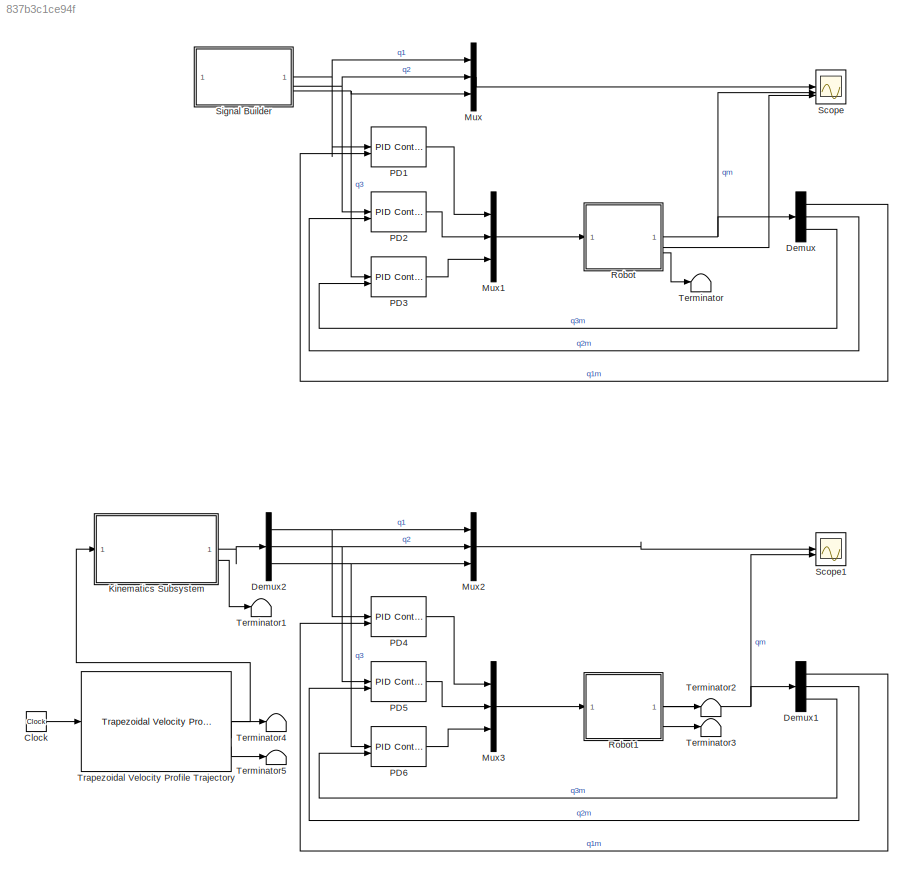
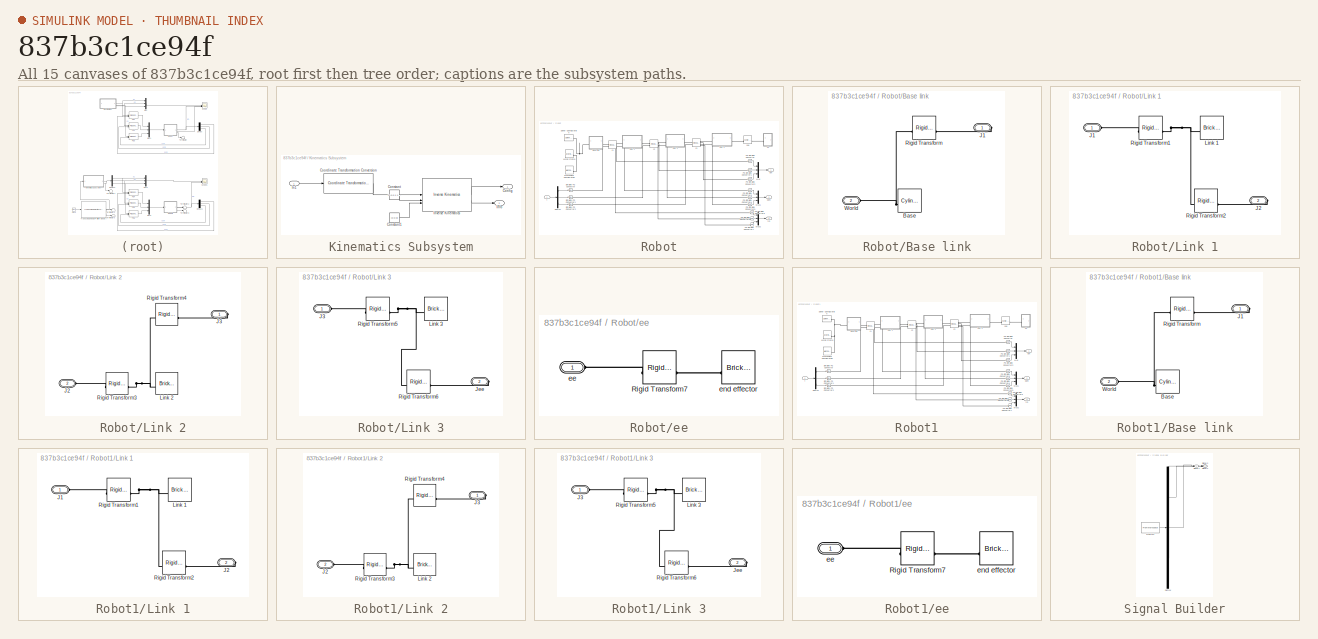
[diagram: thumbnail index - all 15 canvases of the model, root first then tree order]
MODEL slx_837b3c1ce94f
KIND model
CONFIG AbsTol = auto
CONFIG EnableMultiTasking = off
CONFIG FixedStep = auto
CONFIG MaxStep = auto
CONFIG MinStep = auto
CONFIG RelTol = 1e-3
CONFIG SampleTimeConstraint = Unconstrained
CONFIG SolverName = VariableStepAuto
CONFIG StartTime = 0.0
CONFIG StopTime = 4
BLOCK [Clock] Clock
BLOCK [Demux] Demux
  Commented = on
  Outputs = 3
BLOCK [Demux] Demux1
  Outputs = 3
BLOCK [Demux] Demux2
  Outputs = 3
BLOCK [SubSystem] Kinematics Subsystem
BLOCK [Outport] Kinematics Subsystem/Config
BLOCK [Constant] Kinematics Subsystem/Constant
  Value = [0 0 0 1 1 1]
BLOCK [Constant] Kinematics Subsystem/Constant1
  Value = [0 0 0]
BLOCK [Reference] Kinematics Subsystem/Coordinate Transformation Conversion  REF=robotcorelib/Coordinate Transformation Conversion
  LibrarySourceBlock = navlib/Utilities/Coordinate Transformation Conversion
  SourceBlock = robotcorelib/Coordinate Transformation Conversion
  SourceType = robotics.slcore.internal.block.CoordinateTransformationConversion
BLOCK [Inport] Kinematics Subsystem/In1
BLOCK [Outport] Kinematics Subsystem/Info
  Port = 2
BLOCK [Reference] Kinematics Subsystem/Inverse Kinematics  REF=robotmaniplib/Inverse Kinematics
  SourceBlock = robotmaniplib/Inverse Kinematics
  SourceType = Inverse Kinematics
BLOCK [Mux] Mux
  Commented = on
  DisplayOption = bar
  Inputs = 3
BLOCK [Mux] Mux1
  Commented = on
  DisplayOption = bar
  Inputs = 3
BLOCK [Mux] Mux2
  DisplayOption = bar
  Inputs = 3
BLOCK [Mux] Mux3
  DisplayOption = bar
  Inputs = 3
BLOCK [Reference] PD1  REF=slpidlib/PID Controller (2DOF)
  Commented = on
  SourceBlock = slpidlib/PID Controller (2DOF)
  SourceType = PID 2dof
BLOCK [Reference] PD2  REF=slpidlib/PID Controller (2DOF)
  Commented = on
  SourceBlock = slpidlib/PID Controller (2DOF)
  SourceType = PID 2dof
BLOCK [Reference] PD3  REF=slpidlib/PID Controller (2DOF)
  Commented = on
  SourceBlock = slpidlib/PID Controller (2DOF)
  SourceType = PID 2dof
BLOCK [Reference] PD4  REF=slpidlib/PID Controller (2DOF)
  SourceBlock = slpidlib/PID Controller (2DOF)
  SourceType = PID 2dof
BLOCK [Reference] PD5  REF=slpidlib/PID Controller (2DOF)
  SourceBlock = slpidlib/PID Controller (2DOF)
  SourceType = PID 2dof
BLOCK [Reference] PD6  REF=slpidlib/PID Controller (2DOF)
  SourceBlock = slpidlib/PID Controller (2DOF)
  SourceType = PID 2dof
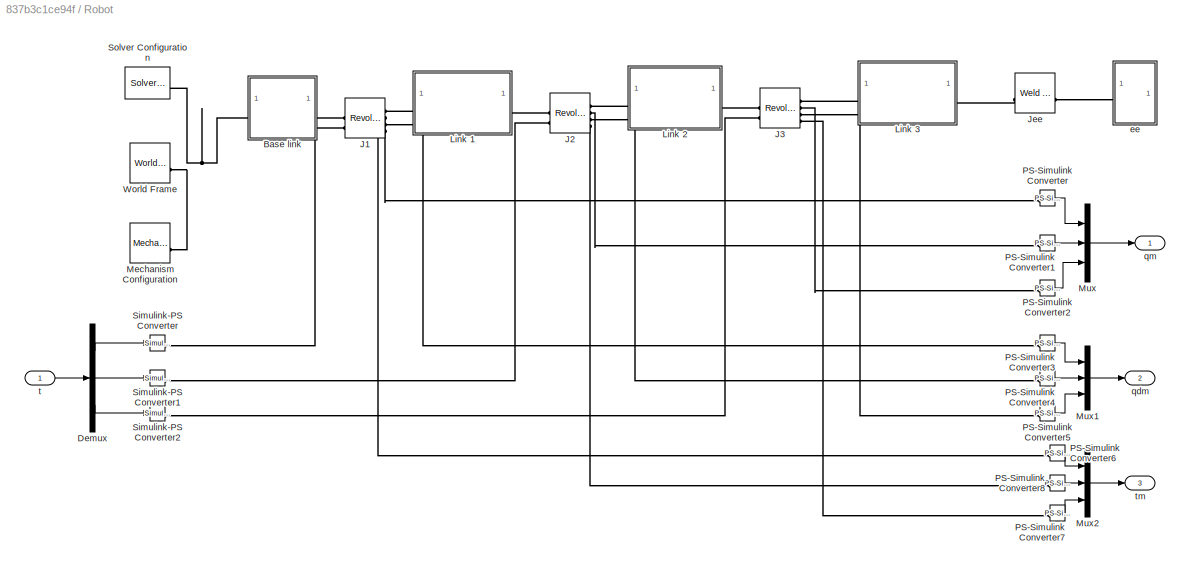
BLOCK [SubSystem] Robot
  Commented = on
BLOCK [SubSystem] Robot/Base link
BLOCK [Reference] Robot/Base link/Base  REF=sm_lib/Body Elements/Cylindrical Solid
  NameLocation = top
  SourceBlock = sm_lib/Body Elements/Cylindrical Solid
  SourceType = Cylindrical Solid
BLOCK [PMIOPort] Robot/Base link/J1
  Side = Right
BLOCK [Reference] Robot/Base link/Rigid Transform  REF=sm_lib/Frames and
Transforms/Rigid
Transform
  SourceBlock = sm_lib/Frames and\nTransforms/Rigid\nTransform
  SourceType = Rigid\nTransform
BLOCK [PMIOPort] Robot/Base link/World
  Port = 2
  Side = Left
BLOCK [Demux] Robot/Demux
  Outputs = 3
BLOCK [Reference] Robot/J1  REF=sm_lib/Joints/Revolute Joint
  SourceBlock = sm_lib/Joints/Revolute Joint
  SourceType = Revolute Joint
BLOCK [Reference] Robot/J2  REF=sm_lib/Joints/Revolute Joint
  SourceBlock = sm_lib/Joints/Revolute Joint
  SourceType = Revolute Joint
BLOCK [Reference] Robot/J3  REF=sm_lib/Joints/Revolute Joint
  SourceBlock = sm_lib/Joints/Revolute Joint
  SourceType = Revolute Joint
BLOCK [Reference] Robot/Jee  REF=sm_lib/Joints/Weld Joint
  SourceBlock = sm_lib/Joints/Weld Joint
  SourceType = Weld Joint
BLOCK [SubSystem] Robot/Link 1
BLOCK [PMIOPort] Robot/Link 1/J1
  Side = Left
BLOCK [PMIOPort] Robot/Link 1/J2
  Port = 2
  Side = Right
BLOCK [Reference] Robot/Link 1/Link 1  REF=sm_lib/Body Elements/Brick Solid
  NameLocation = top
  SourceBlock = sm_lib/Body Elements/Brick Solid
  SourceType = Brick Solid
BLOCK [Reference] Robot/Link 1/Rigid Transform1  REF=sm_lib/Frames and
Transforms/Rigid
Transform
  SourceBlock = sm_lib/Frames and\nTransforms/Rigid\nTransform
  SourceType = Rigid\nTransform
BLOCK [Reference] Robot/Link 1/Rigid Transform2  REF=sm_lib/Frames and
Transforms/Rigid
Transform
  SourceBlock = sm_lib/Frames and\nTransforms/Rigid\nTransform
  SourceType = Rigid\nTransform
BLOCK [SubSystem] Robot/Link 2
BLOCK [PMIOPort] Robot/Link 2/J2
  Port = 2
  Side = Left
BLOCK [PMIOPort] Robot/Link 2/J3
  Side = Right
BLOCK [Reference] Robot/Link 2/Link 2  REF=sm_lib/Body Elements/Brick Solid
  NameLocation = top
  SourceBlock = sm_lib/Body Elements/Brick Solid
  SourceType = Brick Solid
BLOCK [Reference] Robot/Link 2/Rigid Transform3  REF=sm_lib/Frames and
Transforms/Rigid
Transform
  SourceBlock = sm_lib/Frames and\nTransforms/Rigid\nTransform
  SourceType = Rigid\nTransform
BLOCK [Reference] Robot/Link 2/Rigid Transform4  REF=sm_lib/Frames and
Transforms/Rigid
Transform
  SourceBlock = sm_lib/Frames and\nTransforms/Rigid\nTransform
  SourceType = Rigid\nTransform
BLOCK [SubSystem] Robot/Link 3
BLOCK [PMIOPort] Robot/Link 3/J3
  Side = Left
BLOCK [PMIOPort] Robot/Link 3/Jee
  Port = 2
  Side = Right
BLOCK [Reference] Robot/Link 3/Link 3  REF=sm_lib/Body Elements/Brick Solid
  NameLocation = top
  SourceBlock = sm_lib/Body Elements/Brick Solid
  SourceType = Brick Solid
BLOCK [Reference] Robot/Link 3/Rigid Transform5  REF=sm_lib/Frames and
Transforms/Rigid
Transform
  SourceBlock = sm_lib/Frames and\nTransforms/Rigid\nTransform
  SourceType = Rigid\nTransform
BLOCK [Reference] Robot/Link 3/Rigid Transform6  REF=sm_lib/Frames and
Transforms/Rigid
Transform
  SourceBlock = sm_lib/Frames and\nTransforms/Rigid\nTransform
  SourceType = Rigid\nTransform
BLOCK [Reference] Robot/Mechanism Configuration  REF=sm_lib/Utilities/Mechanism
Configuration
  SourceBlock = sm_lib/Utilities/Mechanism\nConfiguration
  SourceType = Mechanism\nConfiguration
BLOCK [Mux] Robot/Mux
  DisplayOption = bar
  Inputs = 3
BLOCK [Mux] Robot/Mux1
  DisplayOption = bar
  Inputs = 3
BLOCK [Mux] Robot/Mux2
  DisplayOption = bar
  Inputs = 3
BLOCK [Reference] Robot/PS-Simulink Converter  REF=nesl_utility/PS-Simulink
Converter
  SourceBlock = nesl_utility/PS-Simulink\nConverter
  SourceType = PS-Simulink\nConverter
BLOCK [Reference] Robot/PS-Simulink Converter1  REF=nesl_utility/PS-Simulink
Converter
  SourceBlock = nesl_utility/PS-Simulink\nConverter
  SourceType = PS-Simulink\nConverter
BLOCK [Reference] Robot/PS-Simulink Converter2  REF=nesl_utility/PS-Simulink
Converter
  SourceBlock = nesl_utility/PS-Simulink\nConverter
  SourceType = PS-Simulink\nConverter
BLOCK [Reference] Robot/PS-Simulink Converter3  REF=nesl_utility/PS-Simulink
Converter
  SourceBlock = nesl_utility/PS-Simulink\nConverter
  SourceType = PS-Simulink\nConverter
BLOCK [Reference] Robot/PS-Simulink Converter4  REF=nesl_utility/PS-Simulink
Converter
  SourceBlock = nesl_utility/PS-Simulink\nConverter
  SourceType = PS-Simulink\nConverter
BLOCK [Reference] Robot/PS-Simulink Converter5  REF=nesl_utility/PS-Simulink
Converter
  SourceBlock = nesl_utility/PS-Simulink\nConverter
  SourceType = PS-Simulink\nConverter
BLOCK [Reference] Robot/PS-Simulink Converter6  REF=nesl_utility/PS-Simulink
Converter
  SourceBlock = nesl_utility/PS-Simulink\nConverter
  SourceType = PS-Simulink\nConverter
BLOCK [Reference] Robot/PS-Simulink Converter7  REF=nesl_utility/PS-Simulink
Converter
  SourceBlock = nesl_utility/PS-Simulink\nConverter
  SourceType = PS-Simulink\nConverter
BLOCK [Reference] Robot/PS-Simulink Converter8  REF=nesl_utility/PS-Simulink
Converter
  SourceBlock = nesl_utility/PS-Simulink\nConverter
  SourceType = PS-Simulink\nConverter
BLOCK [Reference] Robot/Simulink-PS Converter  REF=nesl_utility/Simulink-PS
Converter
  SourceBlock = nesl_utility/Simulink-PS\nConverter
  SourceType = Simulink-PS\nConverter
BLOCK [Reference] Robot/Simulink-PS Converter1  REF=nesl_utility/Simulink-PS
Converter
  SourceBlock = nesl_utility/Simulink-PS\nConverter
  SourceType = Simulink-PS\nConverter
BLOCK [Reference] Robot/Simulink-PS Converter2  REF=nesl_utility/Simulink-PS
Converter
  SourceBlock = nesl_utility/Simulink-PS\nConverter
  SourceType = Simulink-PS\nConverter
BLOCK [Reference] Robot/Solver Configuration  REF=nesl_utility/Solver
Configuration
  SourceBlock = nesl_utility/Solver\nConfiguration
  SourceType = Solver\nConfiguration
BLOCK [Reference] Robot/World Frame  REF=sm_lib/Frames and
Transforms/World Frame
  SourceBlock = sm_lib/Frames and\nTransforms/World Frame
  SourceType = World Frame
BLOCK [SubSystem] Robot/ee
BLOCK [Reference] Robot/ee/Rigid Transform7  REF=sm_lib/Frames and
Transforms/Rigid
Transform
  SourceBlock = sm_lib/Frames and\nTransforms/Rigid\nTransform
  SourceType = Rigid\nTransform
BLOCK [PMIOPort] Robot/ee/ee
  Side = Left
BLOCK [Reference] Robot/ee/end effector  REF=sm_lib/Body Elements/Brick Solid
  NameLocation = top
  SourceBlock = sm_lib/Body Elements/Brick Solid
  SourceType = Brick Solid
BLOCK [Outport] Robot/qdm
  Port = 2
BLOCK [Outport] Robot/qm
BLOCK [Inport] Robot/t
BLOCK [Outport] Robot/tm
  Port = 3
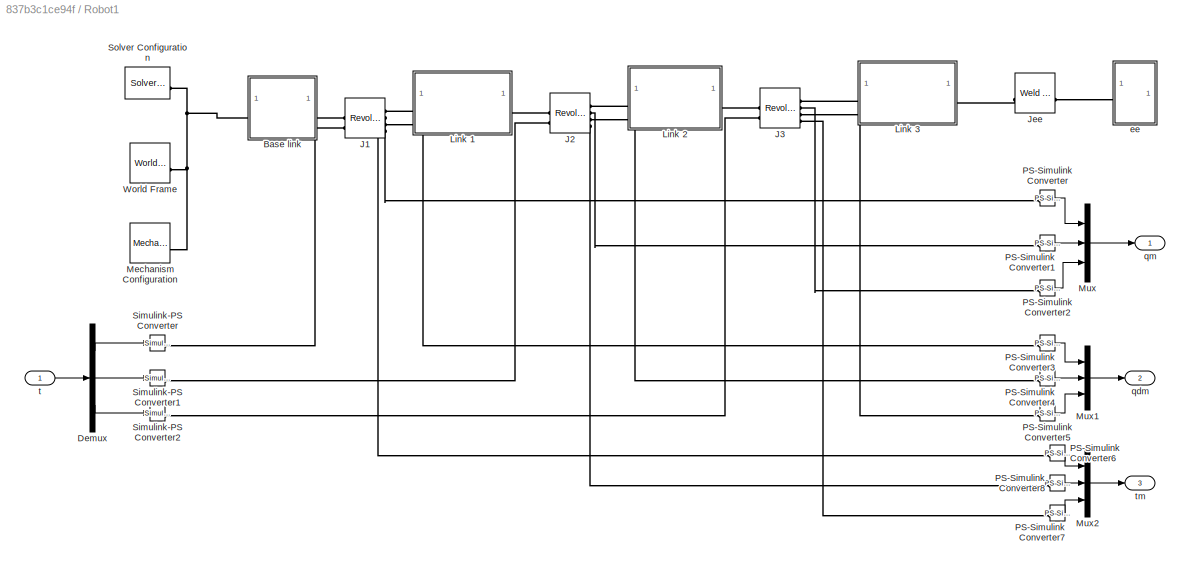
BLOCK [SubSystem] Robot1
BLOCK [SubSystem] Robot1/Base link
BLOCK [Reference] Robot1/Base link/Base  REF=sm_lib/Body Elements/Cylindrical Solid
  NameLocation = top
  SourceBlock = sm_lib/Body Elements/Cylindrical Solid
  SourceType = Cylindrical Solid
BLOCK [PMIOPort] Robot1/Base link/J1
  Side = Right
BLOCK [Reference] Robot1/Base link/Rigid Transform  REF=sm_lib/Frames and
Transforms/Rigid
Transform
  SourceBlock = sm_lib/Frames and\nTransforms/Rigid\nTransform
  SourceType = Rigid\nTransform
BLOCK [PMIOPort] Robot1/Base link/World
  Port = 2
  Side = Left
BLOCK [Demux] Robot1/Demux
  Outputs = 3
BLOCK [Reference] Robot1/J1  REF=sm_lib/Joints/Revolute Joint
  SourceBlock = sm_lib/Joints/Revolute Joint
  SourceType = Revolute Joint
BLOCK [Reference] Robot1/J2  REF=sm_lib/Joints/Revolute Joint
  SourceBlock = sm_lib/Joints/Revolute Joint
  SourceType = Revolute Joint
BLOCK [Reference] Robot1/J3  REF=sm_lib/Joints/Revolute Joint
  SourceBlock = sm_lib/Joints/Revolute Joint
  SourceType = Revolute Joint
BLOCK [Reference] Robot1/Jee  REF=sm_lib/Joints/Weld Joint
  SourceBlock = sm_lib/Joints/Weld Joint
  SourceType = Weld Joint
BLOCK [SubSystem] Robot1/Link 1
BLOCK [PMIOPort] Robot1/Link 1/J1
  Side = Left
BLOCK [PMIOPort] Robot1/Link 1/J2
  Port = 2
  Side = Right
BLOCK [Reference] Robot1/Link 1/Link 1  REF=sm_lib/Body Elements/Brick Solid
  NameLocation = top
  SourceBlock = sm_lib/Body Elements/Brick Solid
  SourceType = Brick Solid
BLOCK [Reference] Robot1/Link 1/Rigid Transform1  REF=sm_lib/Frames and
Transforms/Rigid
Transform
  SourceBlock = sm_lib/Frames and\nTransforms/Rigid\nTransform
  SourceType = Rigid\nTransform
BLOCK [Reference] Robot1/Link 1/Rigid Transform2  REF=sm_lib/Frames and
Transforms/Rigid
Transform
  SourceBlock = sm_lib/Frames and\nTransforms/Rigid\nTransform
  SourceType = Rigid\nTransform
BLOCK [SubSystem] Robot1/Link 2
BLOCK [PMIOPort] Robot1/Link 2/J2
  Port = 2
  Side = Left
BLOCK [PMIOPort] Robot1/Link 2/J3
  Side = Right
BLOCK [Reference] Robot1/Link 2/Link 2  REF=sm_lib/Body Elements/Brick Solid
  NameLocation = top
  SourceBlock = sm_lib/Body Elements/Brick Solid
  SourceType = Brick Solid
BLOCK [Reference] Robot1/Link 2/Rigid Transform3  REF=sm_lib/Frames and
Transforms/Rigid
Transform
  SourceBlock = sm_lib/Frames and\nTransforms/Rigid\nTransform
  SourceType = Rigid\nTransform
BLOCK [Reference] Robot1/Link 2/Rigid Transform4  REF=sm_lib/Frames and
Transforms/Rigid
Transform
  SourceBlock = sm_lib/Frames and\nTransforms/Rigid\nTransform
  SourceType = Rigid\nTransform
BLOCK [SubSystem] Robot1/Link 3
BLOCK [PMIOPort] Robot1/Link 3/J3
  Side = Left
BLOCK [PMIOPort] Robot1/Link 3/Jee
  Port = 2
  Side = Right
BLOCK [Reference] Robot1/Link 3/Link 3  REF=sm_lib/Body Elements/Brick Solid
  NameLocation = top
  SourceBlock = sm_lib/Body Elements/Brick Solid
  SourceType = Brick Solid
BLOCK [Reference] Robot1/Link 3/Rigid Transform5  REF=sm_lib/Frames and
Transforms/Rigid
Transform
  SourceBlock = sm_lib/Frames and\nTransforms/Rigid\nTransform
  SourceType = Rigid\nTransform
BLOCK [Reference] Robot1/Link 3/Rigid Transform6  REF=sm_lib/Frames and
Transforms/Rigid
Transform
  SourceBlock = sm_lib/Frames and\nTransforms/Rigid\nTransform
  SourceType = Rigid\nTransform
BLOCK [Reference] Robot1/Mechanism Configuration  REF=sm_lib/Utilities/Mechanism
Configuration
  SourceBlock = sm_lib/Utilities/Mechanism\nConfiguration
  SourceType = Mechanism\nConfiguration
BLOCK [Mux] Robot1/Mux
  DisplayOption = bar
  Inputs = 3
BLOCK [Mux] Robot1/Mux1
  DisplayOption = bar
  Inputs = 3
BLOCK [Mux] Robot1/Mux2
  DisplayOption = bar
  Inputs = 3
BLOCK [Reference] Robot1/PS-Simulink Converter  REF=nesl_utility/PS-Simulink
Converter
  SourceBlock = nesl_utility/PS-Simulink\nConverter
  SourceType = PS-Simulink\nConverter
BLOCK [Reference] Robot1/PS-Simulink Converter1  REF=nesl_utility/PS-Simulink
Converter
  SourceBlock = nesl_utility/PS-Simulink\nConverter
  SourceType = PS-Simulink\nConverter
BLOCK [Reference] Robot1/PS-Simulink Converter2  REF=nesl_utility/PS-Simulink
Converter
  SourceBlock = nesl_utility/PS-Simulink\nConverter
  SourceType = PS-Simulink\nConverter
BLOCK [Reference] Robot1/PS-Simulink Converter3  REF=nesl_utility/PS-Simulink
Converter
  SourceBlock = nesl_utility/PS-Simulink\nConverter
  SourceType = PS-Simulink\nConverter
BLOCK [Reference] Robot1/PS-Simulink Converter4  REF=nesl_utility/PS-Simulink
Converter
  SourceBlock = nesl_utility/PS-Simulink\nConverter
  SourceType = PS-Simulink\nConverter
BLOCK [Reference] Robot1/PS-Simulink Converter5  REF=nesl_utility/PS-Simulink
Converter
  SourceBlock = nesl_utility/PS-Simulink\nConverter
  SourceType = PS-Simulink\nConverter
BLOCK [Reference] Robot1/PS-Simulink Converter6  REF=nesl_utility/PS-Simulink
Converter
  SourceBlock = nesl_utility/PS-Simulink\nConverter
  SourceType = PS-Simulink\nConverter
BLOCK [Reference] Robot1/PS-Simulink Converter7  REF=nesl_utility/PS-Simulink
Converter
  SourceBlock = nesl_utility/PS-Simulink\nConverter
  SourceType = PS-Simulink\nConverter
BLOCK [Reference] Robot1/PS-Simulink Converter8  REF=nesl_utility/PS-Simulink
Converter
  SourceBlock = nesl_utility/PS-Simulink\nConverter
  SourceType = PS-Simulink\nConverter
BLOCK [Reference] Robot1/Simulink-PS Converter  REF=nesl_utility/Simulink-PS
Converter
  SourceBlock = nesl_utility/Simulink-PS\nConverter
  SourceType = Simulink-PS\nConverter
BLOCK [Reference] Robot1/Simulink-PS Converter1  REF=nesl_utility/Simulink-PS
Converter
  SourceBlock = nesl_utility/Simulink-PS\nConverter
  SourceType = Simulink-PS\nConverter
BLOCK [Reference] Robot1/Simulink-PS Converter2  REF=nesl_utility/Simulink-PS
Converter
  SourceBlock = nesl_utility/Simulink-PS\nConverter
  SourceType = Simulink-PS\nConverter
BLOCK [Reference] Robot1/Solver Configuration  REF=nesl_utility/Solver
Configuration
  SourceBlock = nesl_utility/Solver\nConfiguration
  SourceType = Solver\nConfiguration
BLOCK [Reference] Robot1/World Frame  REF=sm_lib/Frames and
Transforms/World Frame
  SourceBlock = sm_lib/Frames and\nTransforms/World Frame
  SourceType = World Frame
BLOCK [SubSystem] Robot1/ee
BLOCK [Reference] Robot1/ee/Rigid Transform7  REF=sm_lib/Frames and
Transforms/Rigid
Transform
  SourceBlock = sm_lib/Frames and\nTransforms/Rigid\nTransform
  SourceType = Rigid\nTransform
BLOCK [PMIOPort] Robot1/ee/ee
  Side = Left
BLOCK [Reference] Robot1/ee/end effector  REF=sm_lib/Body Elements/Brick Solid
  NameLocation = top
  SourceBlock = sm_lib/Body Elements/Brick Solid
  SourceType = Brick Solid
BLOCK [Outport] Robot1/qdm
  Port = 2
BLOCK [Outport] Robot1/qm
BLOCK [Inport] Robot1/t
BLOCK [Outport] Robot1/tm
  Port = 3
BLOCK [Scope] Scope
  Commented = on
  Floating = off
  NumInputPorts = 3
  ScopeSpecificationString = Simulink.scopes.TimeScopeBlockCfg('CurrentConfiguration', extmgr.ConfigurationSet(extmgr.Configuration('Core','General UI',true,'DisplayFullSourceName',true),extmgr.Configuration('Core','Source UI',true),extmgr.Configuration('Sources','WiredSimulink',true),extmgr.Configuration('Visuals','Time Domain',true,'SerializedDisplays',{struct('MinYLimReal','-0.0375','MaxYLimReal','0.3375','YLabelReal','','...<+2749ch>
BLOCK [Scope] Scope1
  Floating = off
  NumInputPorts = 2
  ScopeSpecificationString = Simulink.scopes.TimeScopeBlockCfg('CurrentConfiguration', extmgr.ConfigurationSet(extmgr.Configuration('Core','General UI',true),extmgr.Configuration('Core','Source UI',true),extmgr.Configuration('Sources','WiredSimulink',true,'DataLoggingVariableName','ScopeData1'),extmgr.Configuration('Visuals','Time Domain',true,'SerializedDisplays',{struct('MinYLimReal','-0.0244','MaxYLimReal','0.12165','YLabe...<+2028ch>
BLOCK [SubSystem] Signal Builder
  ClipboardFcn = sigbuilder_block('clipboard');
  CloseFcn = sigbuilder_block('close');
  Commented = on
  ContinueFcn = sigbuilder_block('continue');
  CopyFcn = sigbuilder_block('copy');
  DeleteFcn = sigbuilder_block('delete');
  LoadFcn = sigbuilder_block('load');
  MaskHideContents = on
  ModelCloseFcn = sigbuilder_block('modelClose');
  NameChangeFcn = sigbuilder_block('namechange');
  OpenFcn = sigbuilder_block('open',[280.2 117 550.8 400.2 ]);
  PauseFcn = sigbuilder_block('pause');
  PreSaveFcn = sigbuilder_block('preSave');
  StartFcn = sigbuilder_block('start');
  StopFcn = sigbuilder_block('stop');
  Tag = STV Subsys
BLOCK [Demux] Signal Builder/Demux
  DisplayOption = none
  Outputs = 3
  Tag = STV Demux
BLOCK [FromWorkspace] Signal Builder/FromWs
  Tag = STV FromWs
  VariableName = tuvar
BLOCK [Outport] Signal Builder/Signal 1
  Tag = STV Outport
BLOCK [Outport] Signal Builder/Signal 2
  Port = 2
  Tag = STV Outport
BLOCK [Outport] Signal Builder/Signal 3
  Port = 3
  Tag = STV Outport
BLOCK [Terminator] Terminator
  Commented = on
BLOCK [Terminator] Terminator1
BLOCK [Terminator] Terminator2
BLOCK [Terminator] Terminator3
BLOCK [Terminator] Terminator4
BLOCK [Terminator] Terminator5
BLOCK [Reference] Trapezoidal Velocity Profile Trajectory  REF=robotcorelib/Trapezoidal Velocity Profile Trajectory
  SourceBlock = robotcorelib/Trapezoidal Velocity Profile Trajectory
  SourceType = robotics.slcore.internal.block.TrapVelTrajSys
LINE Clock:1 -> Trapezoidal Velocity Profile Trajectory:1
LINE Demux1:1 -> PD4:2
LINE Demux1:2 -> PD5:2
LINE Demux1:3 -> PD6:2
NET Demux2:1 -> Mux2:1, PD4:1
NET Demux2:2 -> Mux2:2, PD5:1
NET Demux2:3 -> Mux2:3, PD6:1
LINE Demux:1 -> PD1:2
LINE Demux:2 -> PD2:2
LINE Demux:3 -> PD3:2
LINE Kinematics Subsystem/Constant1:1 -> Kinematics Subsystem/Inverse Kinematics:3
LINE Kinematics Subsystem/Constant:1 -> Kinematics Subsystem/Inverse Kinematics:2
LINE Kinematics Subsystem/Coordinate Transformation Conversion:1 -> Kinematics Subsystem/Inverse Kinematics:1
LINE Kinematics Subsystem/In1:1 -> Kinematics Subsystem/Coordinate Transformation Conversion:1
LINE Kinematics Subsystem/Inverse Kinematics:1 -> Kinematics Subsystem/Config:1
LINE Kinematics Subsystem/Inverse Kinematics:2 -> Kinematics Subsystem/Info:1
LINE Kinematics Subsystem:1 -> Demux2:1
LINE Kinematics Subsystem:2 -> Terminator1:1
LINE Mux1:1 -> Robot:1
LINE Mux2:1 -> Scope1:1
LINE Mux3:1 -> Robot1:1
LINE Mux:1 -> Scope:1
LINE PD1:1 -> Mux1:1
LINE PD2:1 -> Mux1:2
LINE PD3:1 -> Mux1:3
LINE PD4:1 -> Mux3:1
LINE PD5:1 -> Mux3:2
LINE PD6:1 -> Mux3:3
LINE Robot/Demux:1 -> Robot/Simulink-PS Converter:1
LINE Robot/Demux:2 -> Robot/Simulink-PS Converter1:1
LINE Robot/Demux:3 -> Robot/Simulink-PS Converter2:1
LINE Robot/Mux1:1 -> Robot/qdm:1
LINE Robot/Mux2:1 -> Robot/tm:1
LINE Robot/Mux:1 -> Robot/qm:1
LINE Robot/PS-Simulink Converter1:1 -> Robot/Mux:2
LINE Robot/PS-Simulink Converter2:1 -> Robot/Mux:3
LINE Robot/PS-Simulink Converter3:1 -> Robot/Mux1:1
LINE Robot/PS-Simulink Converter4:1 -> Robot/Mux1:2
LINE Robot/PS-Simulink Converter5:1 -> Robot/Mux1:3
LINE Robot/PS-Simulink Converter6:1 -> Robot/Mux2:1
LINE Robot/PS-Simulink Converter7:1 -> Robot/Mux2:3
LINE Robot/PS-Simulink Converter8:1 -> Robot/Mux2:2
LINE Robot/PS-Simulink Converter:1 -> Robot/Mux:1
LINE Robot/t:1 -> Robot/Demux:1
LINE Robot1/Demux:1 -> Robot1/Simulink-PS Converter:1
LINE Robot1/Demux:2 -> Robot1/Simulink-PS Converter1:1
LINE Robot1/Demux:3 -> Robot1/Simulink-PS Converter2:1
LINE Robot1/Mux1:1 -> Robot1/qdm:1
LINE Robot1/Mux2:1 -> Robot1/tm:1
LINE Robot1/Mux:1 -> Robot1/qm:1
LINE Robot1/PS-Simulink Converter1:1 -> Robot1/Mux:2
LINE Robot1/PS-Simulink Converter2:1 -> Robot1/Mux:3
LINE Robot1/PS-Simulink Converter3:1 -> Robot1/Mux1:1
LINE Robot1/PS-Simulink Converter4:1 -> Robot1/Mux1:2
LINE Robot1/PS-Simulink Converter5:1 -> Robot1/Mux1:3
LINE Robot1/PS-Simulink Converter6:1 -> Robot1/Mux2:1
LINE Robot1/PS-Simulink Converter7:1 -> Robot1/Mux2:3
LINE Robot1/PS-Simulink Converter8:1 -> Robot1/Mux2:2
LINE Robot1/PS-Simulink Converter:1 -> Robot1/Mux:1
LINE Robot1/t:1 -> Robot1/Demux:1
NET Robot1:1 -> Demux1:1, Scope1:2
LINE Robot1:2 -> Terminator2:1
LINE Robot1:3 -> Terminator3:1
NET Robot:1 -> Demux:1, Scope:2
LINE Robot:2 -> Scope:3
LINE Robot:3 -> Terminator:1
NET Signal Builder:1 -> Mux:1, PD1:1
NET Signal Builder:2 -> Mux:2, PD2:1
NET Signal Builder:3 -> Mux:3, PD3:1
LINE Trapezoidal Velocity Profile Trajectory:1 -> Kinematics Subsystem:1
LINE Trapezoidal Velocity Profile Trajectory:2 -> Terminator4:1
LINE Trapezoidal Velocity Profile Trajectory:3 -> Terminator5:1
PNET net1: Robot/Base link/Base:RConn1 -- Robot/Base link/Rigid Transform:LConn1 -- Robot/Base link/World:RConn1
PLINE Robot/Base link/J1:RConn1 -- Robot/Base link/Rigid Transform:RConn1
PNET net2: Robot/Base link:LConn1 -- Robot/Mechanism Configuration:RConn1 -- Robot/Solver Configuration:RConn1 -- Robot/World Frame:RConn1
PLINE Robot/Base link:RConn1 -- Robot/J1:LConn1
PLINE Robot/J1:LConn2 -- Robot/Simulink-PS Converter:RConn1
PLINE Robot/J1:RConn1 -- Robot/Link 1:LConn1
PLINE Robot/J1:RConn2 -- Robot/PS-Simulink Converter:LConn1
PLINE Robot/J1:RConn3 -- Robot/PS-Simulink Converter3:LConn1
PLINE Robot/J1:RConn4 -- Robot/PS-Simulink Converter6:LConn1
PLINE Robot/J2:LConn1 -- Robot/Link 1:RConn1
PLINE Robot/J2:LConn2 -- Robot/Simulink-PS Converter1:RConn1
PLINE Robot/J2:RConn1 -- Robot/Link 2:LConn1
PLINE Robot/J2:RConn2 -- Robot/PS-Simulink Converter1:LConn1
PLINE Robot/J2:RConn3 -- Robot/PS-Simulink Converter4:LConn1
PLINE Robot/J2:RConn4 -- Robot/PS-Simulink Converter8:LConn1
PLINE Robot/J3:LConn1 -- Robot/Link 2:RConn1
PLINE Robot/J3:LConn2 -- Robot/Simulink-PS Converter2:RConn1
PLINE Robot/J3:RConn1 -- Robot/Link 3:LConn1
PLINE Robot/J3:RConn2 -- Robot/PS-Simulink Converter2:LConn1
PLINE Robot/J3:RConn3 -- Robot/PS-Simulink Converter5:LConn1
PLINE Robot/J3:RConn4 -- Robot/PS-Simulink Converter7:LConn1
PLINE Robot/Jee:LConn1 -- Robot/Link 3:RConn1
PLINE Robot/Jee:RConn1 -- Robot/ee:LConn1
PLINE Robot/Link 1/J1:RConn1 -- Robot/Link 1/Rigid Transform1:LConn1
PLINE Robot/Link 1/J2:RConn1 -- Robot/Link 1/Rigid Transform2:RConn1
PNET net3: Robot/Link 1/Link 1:RConn1 -- Robot/Link 1/Rigid Transform1:RConn1 -- Robot/Link 1/Rigid Transform2:LConn1
PLINE Robot/Link 2/J2:RConn1 -- Robot/Link 2/Rigid Transform3:LConn1
PLINE Robot/Link 2/J3:RConn1 -- Robot/Link 2/Rigid Transform4:RConn1
PNET net4: Robot/Link 2/Link 2:RConn1 -- Robot/Link 2/Rigid Transform3:RConn1 -- Robot/Link 2/Rigid Transform4:LConn1
PLINE Robot/Link 3/J3:RConn1 -- Robot/Link 3/Rigid Transform5:LConn1
PLINE Robot/Link 3/Jee:RConn1 -- Robot/Link 3/Rigid Transform6:RConn1
PNET net5: Robot/Link 3/Link 3:RConn1 -- Robot/Link 3/Rigid Transform5:RConn1 -- Robot/Link 3/Rigid Transform6:LConn1
PLINE Robot/ee/Rigid Transform7:LConn1 -- Robot/ee/ee:RConn1
PLINE Robot/ee/Rigid Transform7:RConn1 -- Robot/ee/end effector:RConn1
PNET net6: Robot1/Base link/Base:RConn1 -- Robot1/Base link/Rigid Transform:LConn1 -- Robot1/Base link/World:RConn1
PLINE Robot1/Base link/J1:RConn1 -- Robot1/Base link/Rigid Transform:RConn1
PNET net7: Robot1/Base link:LConn1 -- Robot1/Mechanism Configuration:RConn1 -- Robot1/Solver Configuration:RConn1 -- Robot1/World Frame:RConn1
PLINE Robot1/Base link:RConn1 -- Robot1/J1:LConn1
PLINE Robot1/J1:LConn2 -- Robot1/Simulink-PS Converter:RConn1
PLINE Robot1/J1:RConn1 -- Robot1/Link 1:LConn1
PLINE Robot1/J1:RConn2 -- Robot1/PS-Simulink Converter:LConn1
PLINE Robot1/J1:RConn3 -- Robot1/PS-Simulink Converter3:LConn1
PLINE Robot1/J1:RConn4 -- Robot1/PS-Simulink Converter6:LConn1
PLINE Robot1/J2:LConn1 -- Robot1/Link 1:RConn1
PLINE Robot1/J2:LConn2 -- Robot1/Simulink-PS Converter1:RConn1
PLINE Robot1/J2:RConn1 -- Robot1/Link 2:LConn1
PLINE Robot1/J2:RConn2 -- Robot1/PS-Simulink Converter1:LConn1
PLINE Robot1/J2:RConn3 -- Robot1/PS-Simulink Converter4:LConn1
PLINE Robot1/J2:RConn4 -- Robot1/PS-Simulink Converter8:LConn1
PLINE Robot1/J3:LConn1 -- Robot1/Link 2:RConn1
PLINE Robot1/J3:LConn2 -- Robot1/Simulink-PS Converter2:RConn1
PLINE Robot1/J3:RConn1 -- Robot1/Link 3:LConn1
PLINE Robot1/J3:RConn2 -- Robot1/PS-Simulink Converter2:LConn1
PLINE Robot1/J3:RConn3 -- Robot1/PS-Simulink Converter5:LConn1
PLINE Robot1/J3:RConn4 -- Robot1/PS-Simulink Converter7:LConn1
PLINE Robot1/Jee:LConn1 -- Robot1/Link 3:RConn1
PLINE Robot1/Jee:RConn1 -- Robot1/ee:LConn1
PLINE Robot1/Link 1/J1:RConn1 -- Robot1/Link 1/Rigid Transform1:LConn1
PLINE Robot1/Link 1/J2:RConn1 -- Robot1/Link 1/Rigid Transform2:RConn1
PNET net8: Robot1/Link 1/Link 1:RConn1 -- Robot1/Link 1/Rigid Transform1:RConn1 -- Robot1/Link 1/Rigid Transform2:LConn1
PLINE Robot1/Link 2/J2:RConn1 -- Robot1/Link 2/Rigid Transform3:LConn1
PLINE Robot1/Link 2/J3:RConn1 -- Robot1/Link 2/Rigid Transform4:RConn1
PNET net9: Robot1/Link 2/Link 2:RConn1 -- Robot1/Link 2/Rigid Transform3:RConn1 -- Robot1/Link 2/Rigid Transform4:LConn1
PLINE Robot1/Link 3/J3:RConn1 -- Robot1/Link 3/Rigid Transform5:LConn1
PLINE Robot1/Link 3/Jee:RConn1 -- Robot1/Link 3/Rigid Transform6:RConn1
PNET net10: Robot1/Link 3/Link 3:RConn1 -- Robot1/Link 3/Rigid Transform5:RConn1 -- Robot1/Link 3/Rigid Transform6:LConn1
PLINE Robot1/ee/Rigid Transform7:LConn1 -- Robot1/ee/ee:RConn1
PLINE Robot1/ee/Rigid Transform7:RConn1 -- Robot1/ee/end effector:RConn1
note: NET lines group one-source signal fan-out (src -> all destinations, sorted); 1:1 wires keep LINE; PNET lines group multi-terminal physical nets as a canonical sorted terminal list (undirected conserving connections); 2-terminal nets keep the pairwise PLINE form
